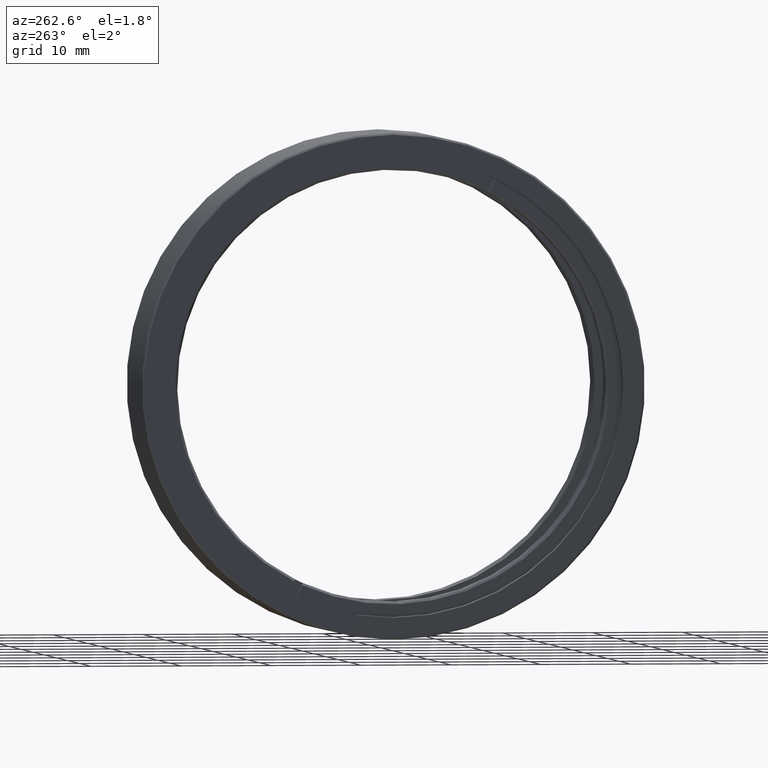
[diagram: clean part render]
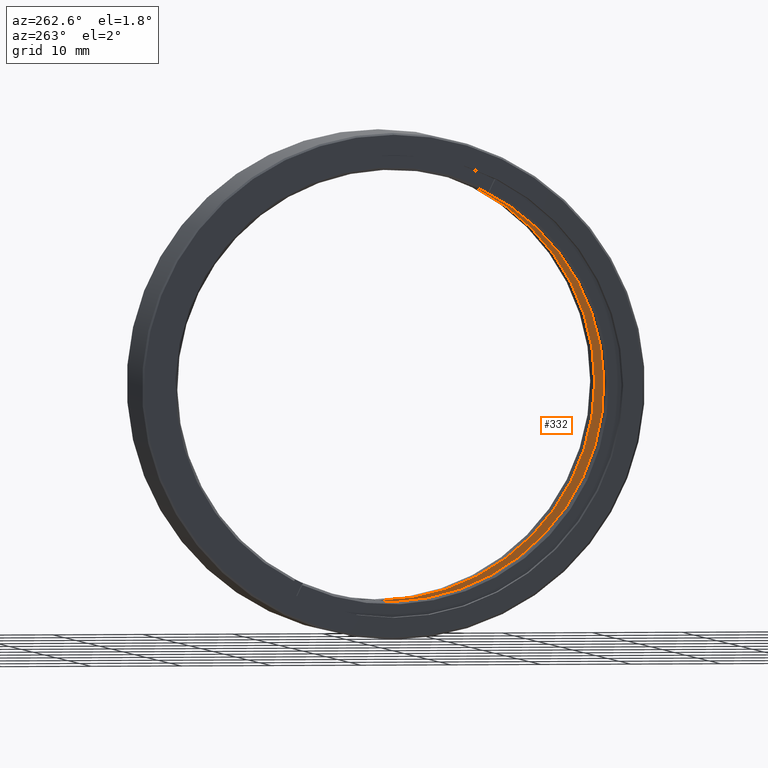
[diagram: same view with one face highlighted and labeled with its STEP entity id]
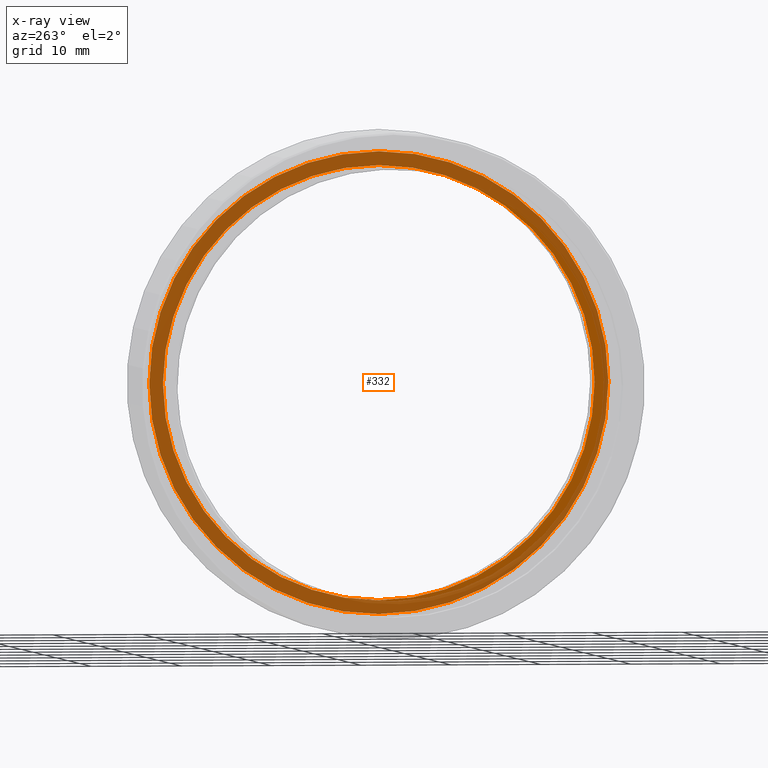
[diagram: x-ray of the same camera — body ghosted, the highlighted face saturated]
A machine part, auxiliary view. The second image highlights one B-rep face of the part: STEP entity #332.
The next image is the same camera in x-ray: the body ghosted, the highlighted face saturated — about 80% of this face is hidden behind the body in this view.
In plain terms, the highlighted planar face has unit normal (1, 0, 0).
Its self-contained STEP definition (entity closure, byte-faithful):
#37 = AXIS2_PLACEMENT_3D ( 'NONE', #1349, #468, #1235 ) ;
#71 = ORIENTED_EDGE ( 'NONE', *, *, #1655, .T. ) ;
#89 = AXIS2_PLACEMENT_3D ( 'NONE', #551, #1463, #1046 ) ;
#109 = CIRCLE ( 'NONE', #89, 25.52499999999999858 ) ;
#203 = VERTEX_POINT ( 'NONE', #1193 ) ;
#253 = CARTESIAN_POINT ( 'NONE',  ( 2.725999999999982659, -20.10857142857141966, -25.52499999999999858 ) ) ;
#286 = CARTESIAN_POINT ( 'NONE',  ( 2.725999999999982659, -20.10857142857141611, 25.52499999999999858 ) ) ;
#318 = DIRECTION ( 'NONE',  ( -1.000000000000000000, 0.000000000000000000, 0.000000000000000000 ) ) ;
#324 = ORIENTED_EDGE ( 'NONE', *, *, #754, .T. ) ;
#332 = ADVANCED_FACE ( 'NONE', ( #824, #479 ), #817, .F. ) ;
#348 = EDGE_CURVE ( 'NONE', #831, #203, #1440, .T. ) ;
#468 = DIRECTION ( 'NONE',  ( 1.000000000000000000, 0.000000000000000000, 0.000000000000000000 ) ) ;
#479 = FACE_OUTER_BOUND ( 'NONE', #1603, .T. ) ;
#551 = CARTESIAN_POINT ( 'NONE',  ( 2.725999999999982659, -20.10857142857141966, 0.000000000000000000 ) ) ;
#553 = VERTEX_POINT ( 'NONE', #253 ) ;
#559 = CARTESIAN_POINT ( 'NONE',  ( 2.725999999999982659, -20.10857142857141966, 0.000000000000000000 ) ) ;
#579 = CARTESIAN_POINT ( 'NONE',  ( 2.725999999999982659, -20.10857142857141966, 0.000000000000000000 ) ) ;
#686 = DIRECTION ( 'NONE',  ( 0.000000000000000000, 0.000000000000000000, -1.000000000000000000 ) ) ;
#697 = DIRECTION ( 'NONE',  ( 1.000000000000000000, 0.000000000000000000, 0.000000000000000000 ) ) ;
#726 = EDGE_LOOP ( 'NONE', ( #978, #71 ) ) ;
#732 = AXIS2_PLACEMENT_3D ( 'NONE', #1605, #318, #1614 ) ;
#754 = EDGE_CURVE ( 'NONE', #553, #1617, #1435, .T. ) ;
#805 = DIRECTION ( 'NONE',  ( 1.000000000000000000, 0.000000000000000000, 0.000000000000000000 ) ) ;
#817 = PLANE ( 'NONE',  #1372 ) ;
#824 = FACE_BOUND ( 'NONE', #726, .T. ) ;
#831 = VERTEX_POINT ( 'NONE', #844 ) ;
#844 = CARTESIAN_POINT ( 'NONE',  ( 2.725999999999982659, -20.10857142857141966, -24.00000000000000355 ) ) ;
#978 = ORIENTED_EDGE ( 'NONE', *, *, #348, .T. ) ;
#1046 = DIRECTION ( 'NONE',  ( 0.000000000000000000, 0.000000000000000000, 1.000000000000000000 ) ) ;
#1073 = AXIS2_PLACEMENT_3D ( 'NONE', #579, #805, #686 ) ;
#1178 = ORIENTED_EDGE ( 'NONE', *, *, #1179, .T. ) ;
#1179 = EDGE_CURVE ( 'NONE', #1617, #553, #109, .T. ) ;
#1193 = CARTESIAN_POINT ( 'NONE',  ( 2.725999999999982659, -20.10857142857141611, 24.00000000000000355 ) ) ;
#1215 = DIRECTION ( 'NONE',  ( 0.000000000000000000, 0.000000000000000000, -1.000000000000000000 ) ) ;
#1235 = DIRECTION ( 'NONE',  ( 0.000000000000000000, 0.000000000000000000, -1.000000000000000000 ) ) ;
#1349 = CARTESIAN_POINT ( 'NONE',  ( 2.725999999999982659, -20.10857142857141966, 0.000000000000000000 ) ) ;
#1372 = AXIS2_PLACEMENT_3D ( 'NONE', #559, #697, #1215 ) ;
#1435 = CIRCLE ( 'NONE', #732, 25.52499999999999858 ) ;
#1440 = CIRCLE ( 'NONE', #37, 24.00000000000000355 ) ;
#1463 = DIRECTION ( 'NONE',  ( -1.000000000000000000, 0.000000000000000000, 0.000000000000000000 ) ) ;
#1603 = EDGE_LOOP ( 'NONE', ( #324, #1178 ) ) ;
#1605 = CARTESIAN_POINT ( 'NONE',  ( 2.725999999999982659, -20.10857142857141966, 0.000000000000000000 ) ) ;
#1614 = DIRECTION ( 'NONE',  ( 0.000000000000000000, 0.000000000000000000, 1.000000000000000000 ) ) ;
#1617 = VERTEX_POINT ( 'NONE', #286 ) ;
#1624 = CIRCLE ( 'NONE', #1073, 24.00000000000000355 ) ;
#1655 = EDGE_CURVE ( 'NONE', #203, #831, #1624, .T. ) ;